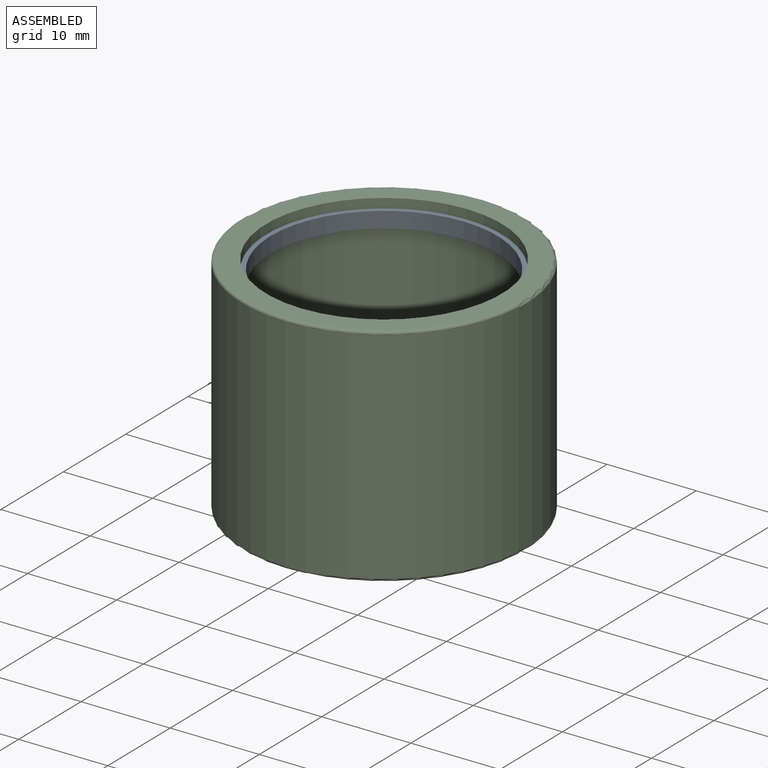
[diagram: assembled view]
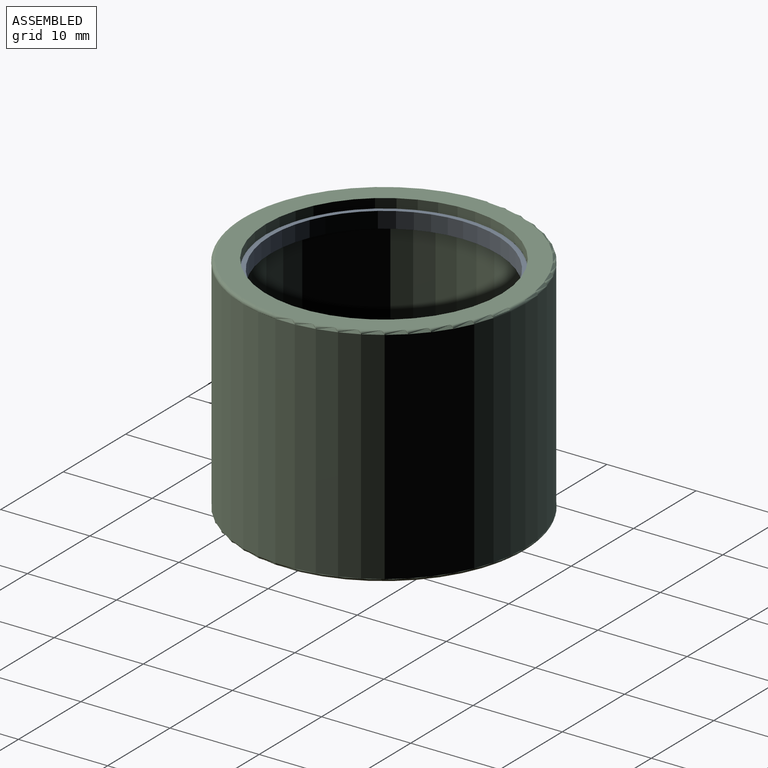
[diagram: assembled view, second angle]
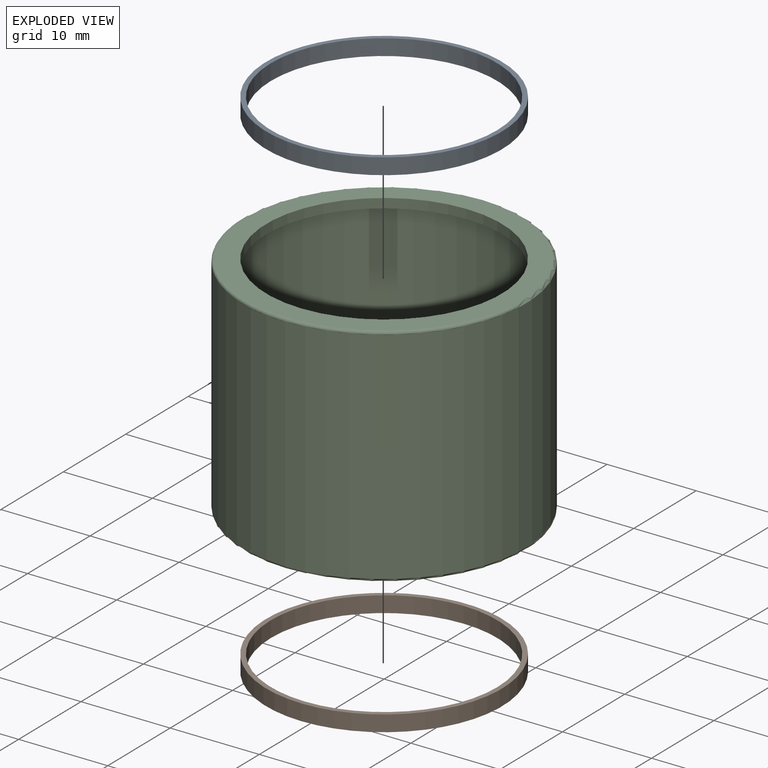
[diagram: exploded view]
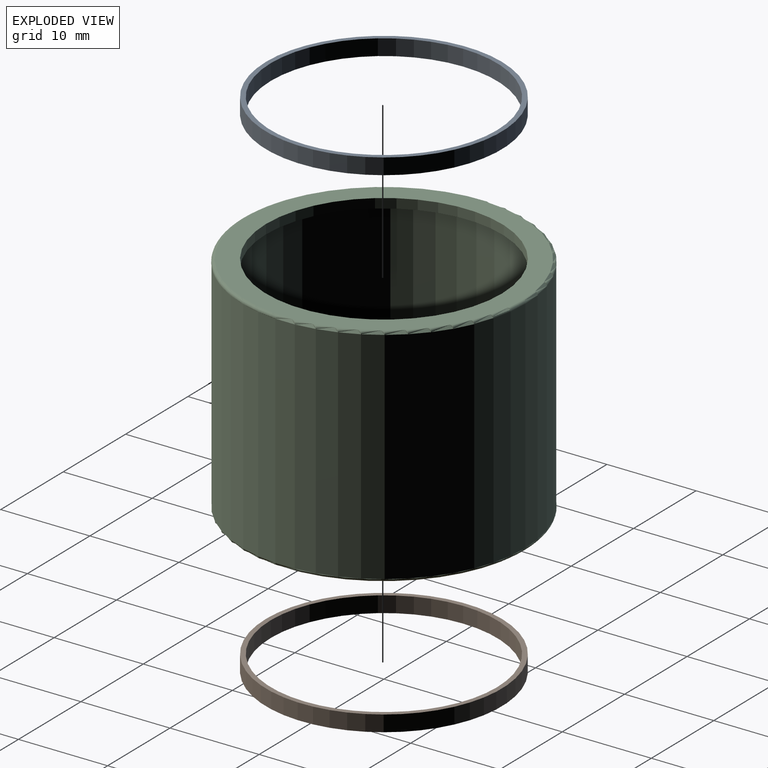
[diagram: exploded view, second angle]
ASSEMBLY  parts=3 mates=2
PART A: 4 faces, bbox 26.5x26.5x1.8 mm
  f0: plane 26.46x26.46mm, normal (0,0,-1), area 43.1mm2, adj f1,f3
  f1: cylinder r=13.23mm len=26.46mm, axis (0,0,1), area 149.5mm2, adj f0,f2
  f2: plane 26.46x26.46mm, normal (0,0,1), area 43.1mm2, adj f1,f3
  f3: cylinder r=12.7mm len=25.4mm, axis (0,0,1), area 143.6mm2, adj f0,f2
PART B: 4 faces, bbox 26.5x26.5x1.8 mm
  f0: plane 26.46x26.46mm, normal (0,0,-1), area 43.1mm2, adj f1,f3
  f1: cylinder r=13.23mm len=26.46mm, axis (0,0,1), area 149.5mm2, adj f0,f2
  f2: plane 26.46x26.46mm, normal (0,0,1), area 43.1mm2, adj f1,f3
  f3: cylinder r=12.7mm len=25.4mm, axis (0,0,1), area 143.6mm2, adj f0,f2
PART C: 10 faces, bbox 34.4x34.4x25.4 mm
  f0: plane 31.12x31.12mm, normal (0,0,1), area 210.6mm2, adj f1,f9
  f1: cylinder r=13.23mm len=26.46mm, axis (0,0,1), area 88mm2, adj f0,f2
  f2: plane 29.63x29.63mm, normal (0,0,-1), area 139.9mm2, adj f1,f3
  f3: cylinder r=14.82mm len=29.63mm, axis (0,0,1), area 2167.6mm2, adj f2,f4
  f4: plane 29.63x29.63mm, normal (0,0,1), area 139.9mm2, adj f3,f5
  f5: cylinder r=13.23mm len=26.46mm, axis (0,0,1), area 88mm2, adj f4,f6
  f6: plane 31.12x31.12mm, normal (0,0,-1), area 210.6mm2, adj f5,f8
  f7: cylinder r=15.88mm len=31.75mm, axis (0,0,1), area 2470.2mm2, adj f8,f9
  f8: torus R=15.56mm, axis (0,0,1), area 49.4mm2, adj f6,f7
  f9: torus R=15.56mm, axis (0,0,-1), area 49.4mm2, adj f0,f7
PLACE A t=(0,0,-0.74)mm
PLACE B t=(0,0,0.74)mm
PLACE C at identity
MATE revolute A.f1 <-> C.f9  axis (0,0,1) through (0,0,11.64)mm
MATE revolute B.f1 <-> C.f8  axis (0,0,1) through (0,0,-11.64)mm
